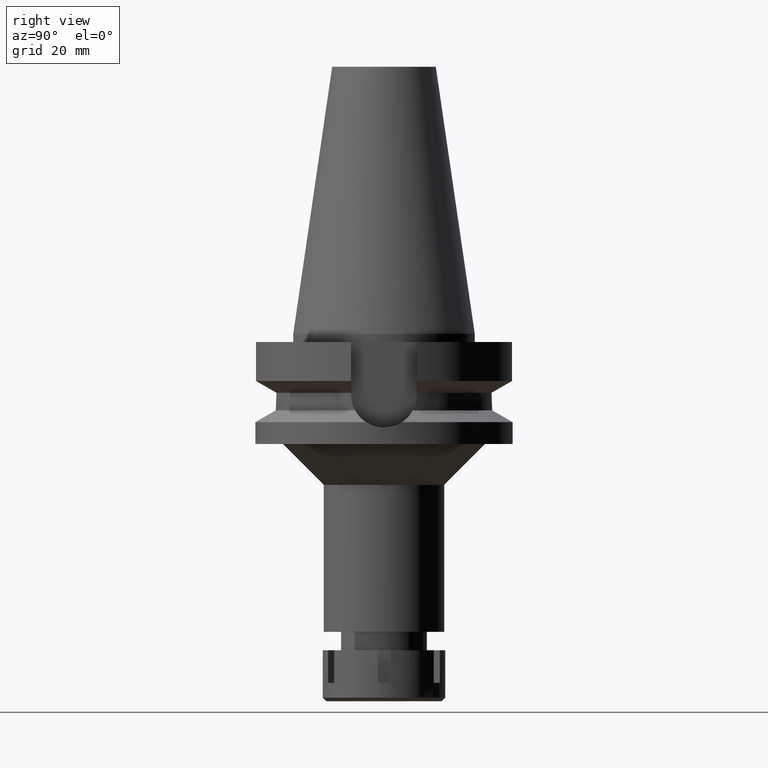
[diagram: clean part render]
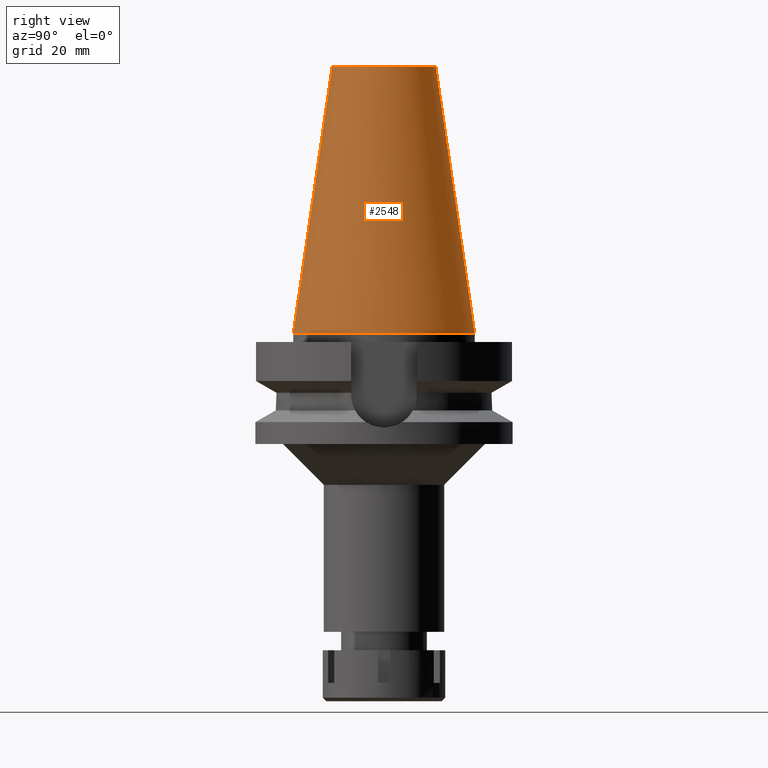
[diagram: same view with one face highlighted and labeled with its STEP entity id]
A machine part, right view. The second image highlights one B-rep face of the part: STEP entity #2548.
In plain terms, the highlighted conical surface has half-angle 8.297 deg.
Its self-contained STEP definition (entity closure, byte-faithful):
#37 = DIRECTION ( 'NONE',  ( 0.0000000000000000000, 1.000000000000000000, 0.0000000000000000000 ) ) ;
#54 = EDGE_CURVE ( 'NONE', #1725, #1665, #3167, .T. ) ;
#101 = ORIENTED_EDGE ( 'NONE', *, *, #3402, .F. ) ;
#370 = DIRECTION ( 'NONE',  ( 0.0000000000000000000, 1.000000000000000000, 0.0000000000000000000 ) ) ;
#387 = DIRECTION ( 'NONE',  ( 0.0000000000000000000, -0.1443043893539925626, -0.9895333461855498891 ) ) ;
#531 = FACE_OUTER_BOUND ( 'NONE', #2175, .T. ) ;
#623 = CARTESIAN_POINT ( 'NONE',  ( 0.0000000000000000000, 1.625106302469000024E-14, 2.842170943039999687E-14 ) ) ;
#630 = CARTESIAN_POINT ( 'NONE',  ( 0.0000000000000000000, 1.625106302469000024E-14, 65.40000000000000568 ) ) ;
#815 = ORIENTED_EDGE ( 'NONE', *, *, #1206, .F. ) ;
#854 = AXIS2_PLACEMENT_3D ( 'NONE', #1961, #3642, #3108 ) ;
#1182 = DIRECTION ( 'NONE',  ( 0.0000000000000000000, 0.0000000000000000000, -1.000000000000000000 ) ) ;
#1206 = EDGE_CURVE ( 'NONE', #2298, #2979, #1807, .T. ) ;
#1609 = VECTOR ( 'NONE', #3471, 1000.000000000000114 ) ;
#1665 = VERTEX_POINT ( 'NONE', #2292 ) ;
#1725 = VERTEX_POINT ( 'NONE', #2323 ) ;
#1795 = EDGE_CURVE ( 'NONE', #2298, #1725, #2417, .T. ) ;
#1807 = LINE ( 'NONE', #3453, #1609 ) ;
#1961 = CARTESIAN_POINT ( 'NONE',  ( 0.0000000000000000000, 1.625106302469000024E-14, 32.70000000000000284 ) ) ;
#2071 = DIRECTION ( 'NONE',  ( 0.0000000000000000000, 0.0000000000000000000, -1.000000000000000000 ) ) ;
#2145 = AXIS2_PLACEMENT_3D ( 'NONE', #623, #1182, #37 ) ;
#2175 = EDGE_LOOP ( 'NONE', ( #3458, #2725, #101, #815 ) ) ;
#2288 = CARTESIAN_POINT ( 'NONE',  ( 0.0000000000000000000, -12.68766899429999917, 65.40000000000000568 ) ) ;
#2292 = CARTESIAN_POINT ( 'NONE',  ( 0.0000000000000000000, -22.22500000000000142, 2.842170943039999687E-14 ) ) ;
#2298 = VERTEX_POINT ( 'NONE', #3442 ) ;
#2323 = CARTESIAN_POINT ( 'NONE',  ( 0.0000000000000000000, -12.68766899429999917, 65.40000000000000568 ) ) ;
#2417 = CIRCLE ( 'NONE', #2956, 12.68766899429999917 ) ;
#2430 = CIRCLE ( 'NONE', #2145, 22.22500000000000142 ) ;
#2487 = VECTOR ( 'NONE', #387, 1000.000000000000114 ) ;
#2548 = ADVANCED_FACE ( 'NONE', ( #531 ), #2672, .T. ) ;
#2672 = CONICAL_SURFACE ( 'NONE', #854, 17.45633449714999941, 0.1448099680379422438 ) ;
#2725 = ORIENTED_EDGE ( 'NONE', *, *, #54, .T. ) ;
#2956 = AXIS2_PLACEMENT_3D ( 'NONE', #630, #2071, #370 ) ;
#2979 = VERTEX_POINT ( 'NONE', #3315 ) ;
#3108 = DIRECTION ( 'NONE',  ( 0.0000000000000000000, -1.000000000000000000, 0.0000000000000000000 ) ) ;
#3167 = LINE ( 'NONE', #2288, #2487 ) ;
#3315 = CARTESIAN_POINT ( 'NONE',  ( 0.0000000000000000000, 22.22500000000000142, 8.526512829120999020E-14 ) ) ;
#3402 = EDGE_CURVE ( 'NONE', #2979, #1665, #2430, .T. ) ;
#3442 = CARTESIAN_POINT ( 'NONE',  ( 0.0000000000000000000, 12.68766899429999917, 65.40000000000000568 ) ) ;
#3453 = CARTESIAN_POINT ( 'NONE',  ( 0.0000000000000000000, 12.68766899429999917, 65.40000000000000568 ) ) ;
#3458 = ORIENTED_EDGE ( 'NONE', *, *, #1795, .T. ) ;
#3471 = DIRECTION ( 'NONE',  ( 0.0000000000000000000, 0.1443043893539925626, -0.9895333461855498891 ) ) ;
#3642 = DIRECTION ( 'NONE',  ( 0.0000000000000000000, 0.0000000000000000000, -1.000000000000000000 ) ) ;